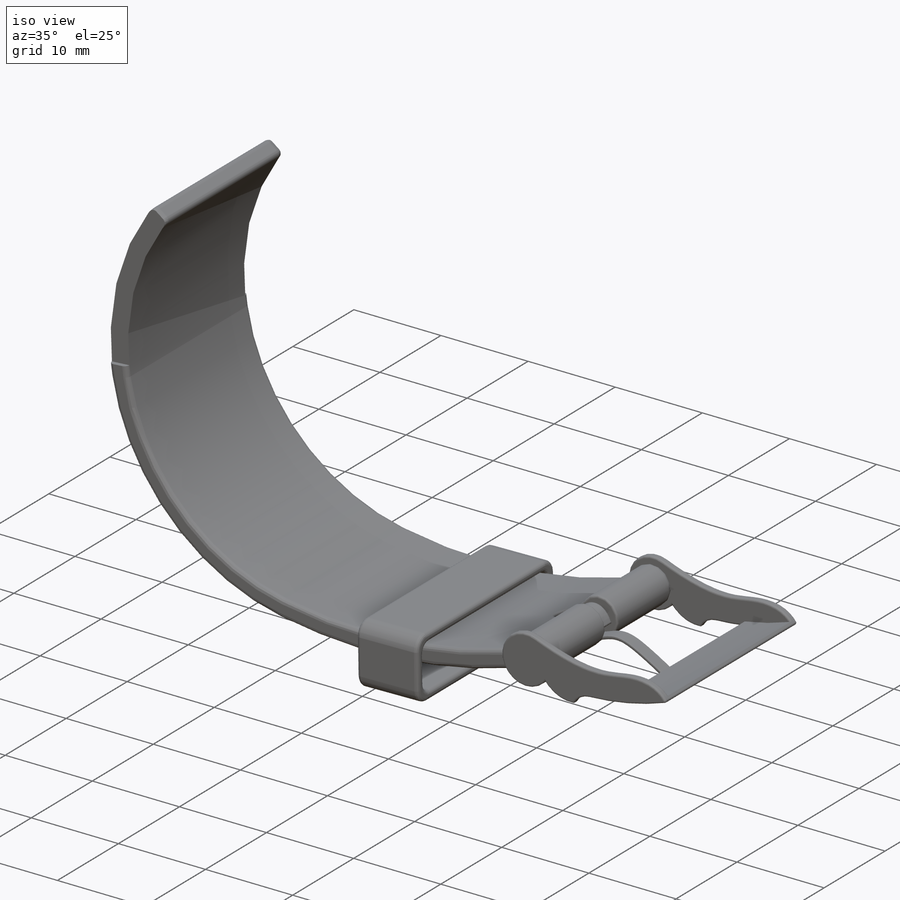
[diagram: iso view]
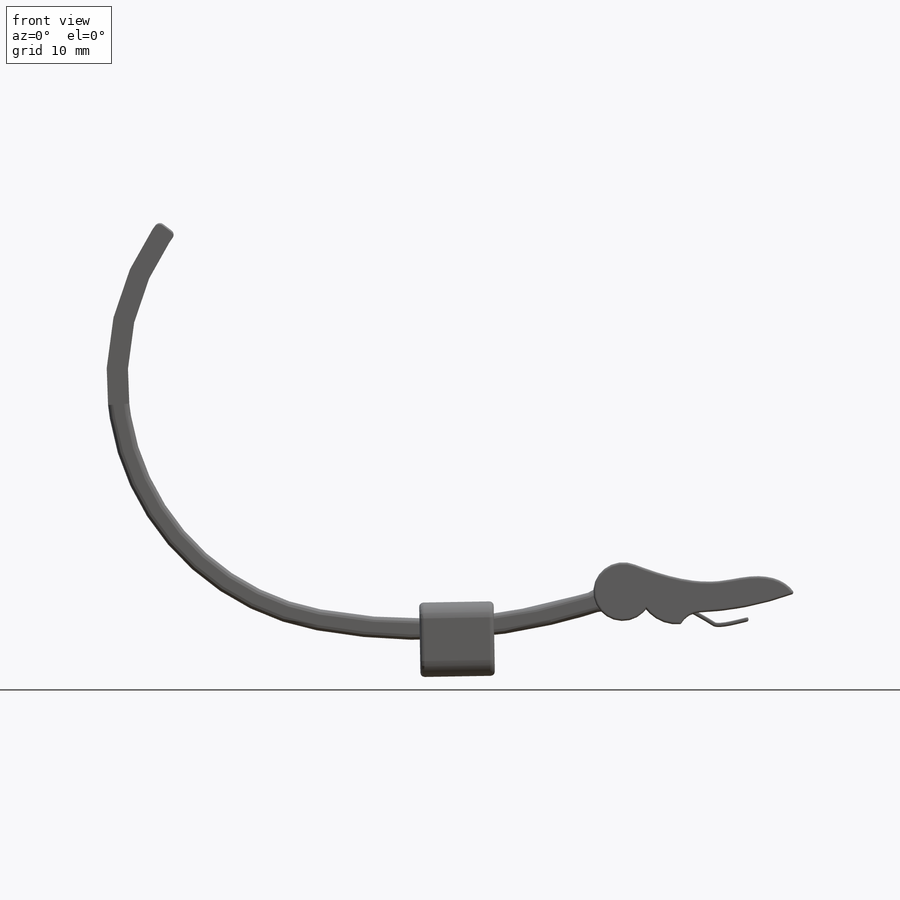
[diagram: front view]
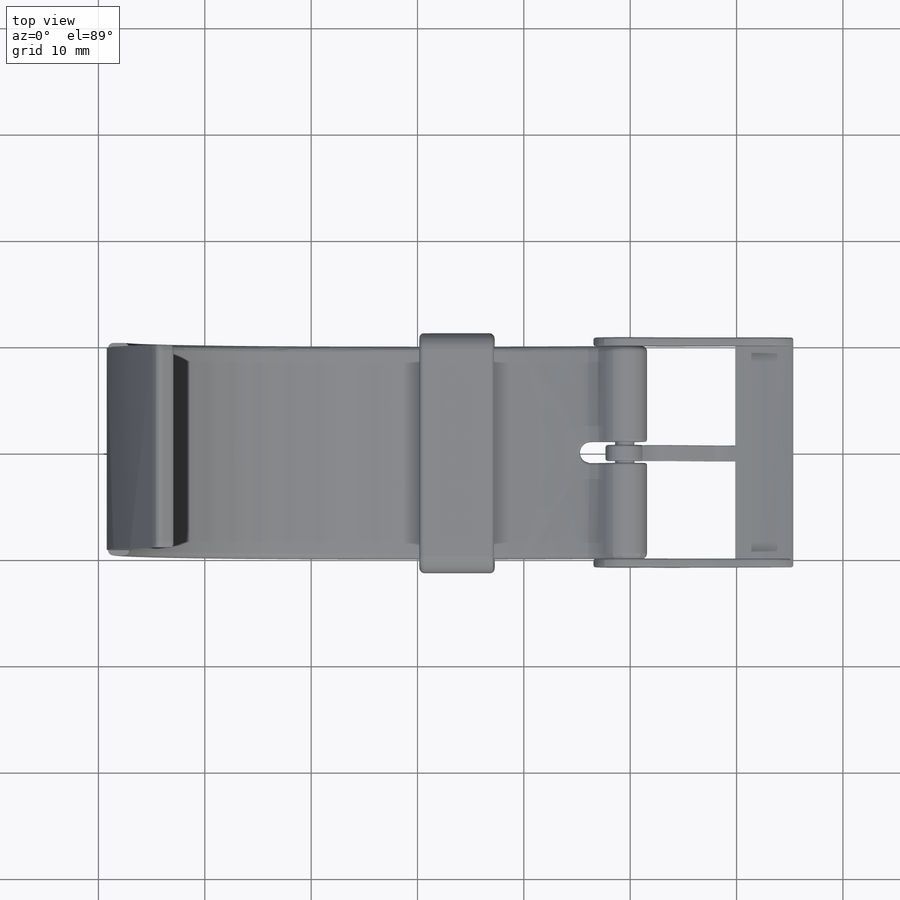
[diagram: top view]
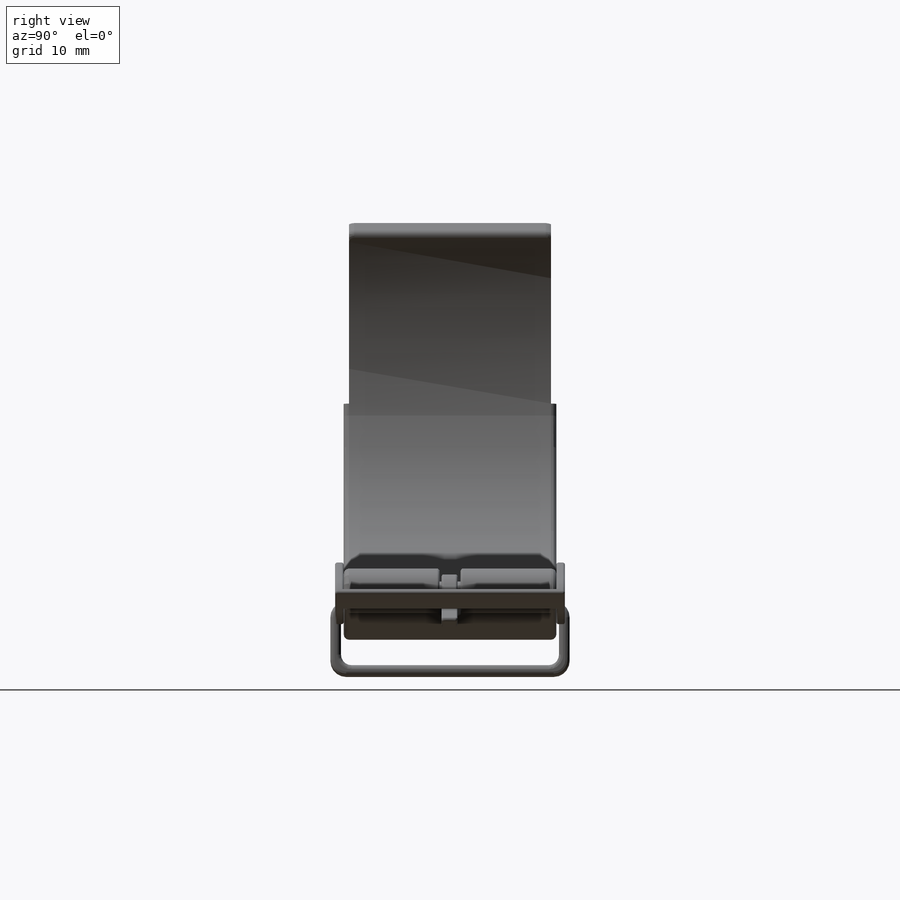
[diagram: right view]
SOLIDWORKS PART (.sldprt)
format: sldprt  version: not decoded by parser v0  size: 898,048 bytes
history: native  units: mm
features: sketch x14, fillet x10, extrude x6, plane x5, cut_extrude x5, material x1 (+8 scaffold rows collapsed)
feature tree (49):
  scaffold x8  (default folders/planes/origin — collapsed)
  material  "Matériau <non spécifié>"
  plane  "Face"
  plane  "Dessus"
  plane  "Droite"
  sketch  "Esquisse1"  dims[c1.D1=120.0mm c1.D2=~17.615707mm c2.D1=20.0mm c2.D5=2.0mm c2.D6=1.0mm c2.D7=5.0mm]
  plane  "Plan1"  Offset=18mm
  sketch  "Esquisse6"
  plane  "Plan2"
  sketch  "Esquisse5"  dims[c1.D1=1.0mm c1.D7=1.5mm c1.D3=5.0mm c1.D2=1.0mm c1.D4=1.0mm c1.D5=1.0mm c1.D6=1.0mm c1.D8=20.5mm c1.D9=0.25mm c2.D2=1.0mm]
  extrude  "Boss.-Extru.1"  Depth=7mm
  fillet  "Congé5"  Radius=0.4mm
  sketch  "Esquisse10"
  extrude  "Boss.-Extru.2"  Depth=20mm
  fillet  "Congé7"  Radius=3mm
  sketch  "Esquisse16"  dims[D1=2.0mm]
  cut_extrude  "Enlèv. mat.-Extru.4"  [1 undecoded]
  sketch  "Esquisse11"
  extrude  "Boss.-Extru.3"  Depth=0.8mm
  sketch  "Esquisse12"  dims[D1=0.5mm]
  extrude  "Boss.-Extru.4"  [1 undecoded]
  sketch  "Esquisse13"  dims[D1=0.0mm]
  extrude  "Boss.-Extru.5"  Depth=0.8mm
  sketch  "Esquisse14"  dims[D1=2.0mm]
  cut_extrude  "Enlèv. mat.-Extru.3"  [1 undecoded]
  sketch  "Esquisse15"  dims[D1=1.5mm D19=0.2mm D5=0.4mm D6=10.0mm D7=5.0mm]
  sketch  "Esquisse17"  dims[D1=1.8mm]
  extrude  "Boss.-Extru.6"  [1 undecoded]
  fillet  "Congé8"  Radius=0.2mm
  fillet  "Congé9"  Radius=0.2mm
  fillet  "Congé10"  Radius=1mm
  sketch  "Esquisse18"
  cut_extrude  "Enlèv. mat.-Extru.5"  Depth=0.5mm
  sketch  "Esquisse19"  dims[D1=3.0mm D3=0.3mm D5=0.3mm D6=0.2mm D2=1.5mm D4=0.1mm]
  cut_extrude  "Enlèv. mat.-Extru.6"  [1 undecoded]
  sketch  "Esquisse21"  dims[D1=0.0mm]
  cut_extrude  "Enlèv. mat.-Extru.7"  Depth=0.5mm
  fillet  "Congé11"  Radius=0.5mm
  fillet  "Congé12"  Radius=0.2mm
  fillet  "Congé15"  Radius=0.2mm
  fillet  "Congé16"  Radius=0.2mm
  fillet  "Congé17"  Radius=0.1mm
decode coverage: 26 of 35 modeling features carry decoded parameters
note: ~ marks probable driven/reference dimensions
note: 5 parameter values undecoded
summary: no parameter record found for 5 features
note: suppression state not decoded; provenance and decode notes live in map.json
